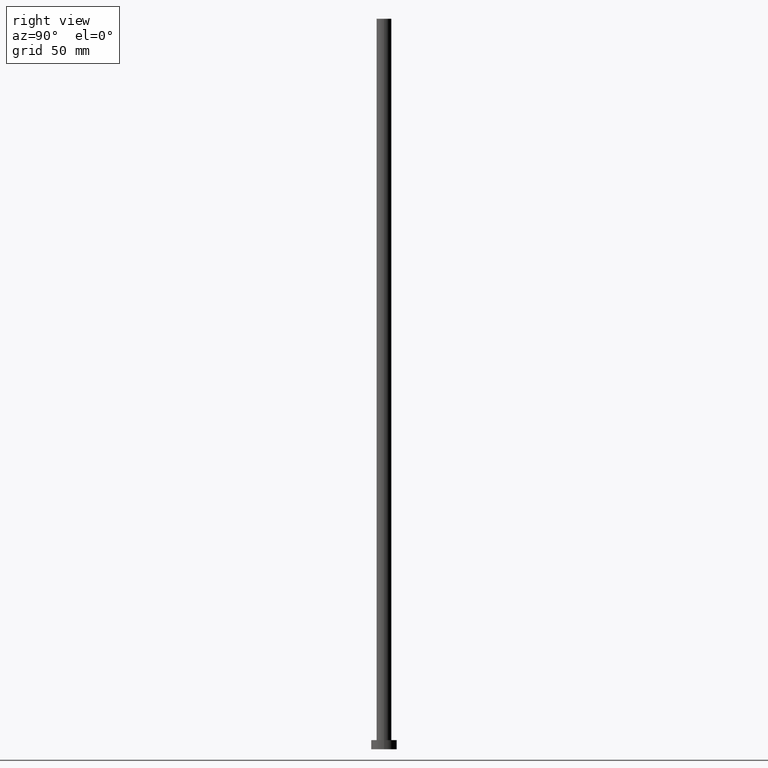
[diagram: clean part render]
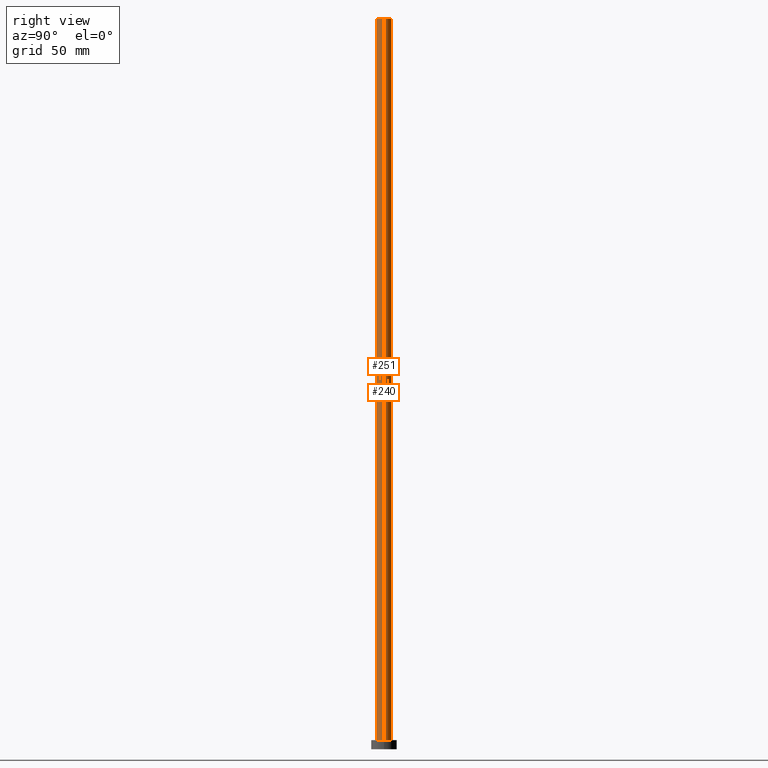
[diagram: same view with one multi-face feature highlighted, each face labeled with its STEP entity id]
A machine part, right view. The highlighted faces form ONE feature: a constant-radius fillet chain: 2 tangent blend faces with common blend radius 4.1 mm. The faces share edges in the B-rep.
Their STEP definitions:
[1] entity #251 (Cylinder):
#19 = VERTEX_POINT ( 'NONE', #211 ) ;
#23 = AXIS2_PLACEMENT_3D ( 'NONE', #35, #120, #82 ) ;
#29 = CIRCLE ( 'NONE', #67, 4.099999999999999645 ) ;
#35 = CARTESIAN_POINT ( 'NONE',  ( 0.000000000000000000, 0.000000000000000000, 400.0000000000000000 ) ) ;
#60 = FACE_OUTER_BOUND ( 'NONE', #204, .T. ) ;
#66 = EDGE_CURVE ( 'NONE', #225, #19, #131, .T. ) ;
#67 = AXIS2_PLACEMENT_3D ( 'NONE', #215, #125, #213 ) ;
#82 = DIRECTION ( 'NONE',  ( 1.000000000000000000, 0.000000000000000000, 0.000000000000000000 ) ) ;
#84 = CARTESIAN_POINT ( 'NONE',  ( 4.099999999999999645, 5.021051876504146399E-16, 400.0000000000000000 ) ) ;
#85 = DIRECTION ( 'NONE',  ( -0.000000000000000000, -0.000000000000000000, -1.000000000000000000 ) ) ;
#87 = VECTOR ( 'NONE', #169, 1000.000000000000000 ) ;
#89 = VERTEX_POINT ( 'NONE', #102 ) ;
#100 = DIRECTION ( 'NONE',  ( -0.000000000000000000, -0.000000000000000000, -1.000000000000000000 ) ) ;
#102 = CARTESIAN_POINT ( 'NONE',  ( -4.099999999999999645, 0.000000000000000000, 5.000000000000000000 ) ) ;
#116 = ORIENTED_EDGE ( 'NONE', *, *, #244, .F. ) ;
#119 = CYLINDRICAL_SURFACE ( 'NONE', #174, 4.099999999999999645 ) ;
#120 = DIRECTION ( 'NONE',  ( 0.000000000000000000, 0.000000000000000000, 1.000000000000000000 ) ) ;
#121 = LINE ( 'NONE', #217, #160 ) ;
#125 = DIRECTION ( 'NONE',  ( 0.000000000000000000, 0.000000000000000000, 1.000000000000000000 ) ) ;
#130 = ORIENTED_EDGE ( 'NONE', *, *, #66, .F. ) ;
#131 = LINE ( 'NONE', #208, #87 ) ;
#132 = ORIENTED_EDGE ( 'NONE', *, *, #171, .T. ) ;
#160 = VECTOR ( 'NONE', #85, 1000.000000000000000 ) ;
#169 = DIRECTION ( 'NONE',  ( -0.000000000000000000, -0.000000000000000000, -1.000000000000000000 ) ) ;
#171 = EDGE_CURVE ( 'NONE', #89, #19, #29, .T. ) ;
#173 = ORIENTED_EDGE ( 'NONE', *, *, #218, .T. ) ;
#174 = AXIS2_PLACEMENT_3D ( 'NONE', #196, #100, #194 ) ;
#193 = VERTEX_POINT ( 'NONE', #230 ) ;
#194 = DIRECTION ( 'NONE',  ( -1.000000000000000000, 0.000000000000000000, 0.000000000000000000 ) ) ;
#196 = CARTESIAN_POINT ( 'NONE',  ( 0.000000000000000000, 0.000000000000000000, 400.0000000000000000 ) ) ;
#204 = EDGE_LOOP ( 'NONE', ( #130, #116, #173, #132 ) ) ;
#208 = CARTESIAN_POINT ( 'NONE',  ( 4.099999999999999645, 5.021051876504146399E-16, 400.0000000000000000 ) ) ;
#211 = CARTESIAN_POINT ( 'NONE',  ( 4.099999999999999645, 5.021051876504146399E-16, 5.000000000000000000 ) ) ;
#213 = DIRECTION ( 'NONE',  ( 1.000000000000000000, 0.000000000000000000, 0.000000000000000000 ) ) ;
#214 = CIRCLE ( 'NONE', #23, 4.099999999999999645 ) ;
#215 = CARTESIAN_POINT ( 'NONE',  ( 0.000000000000000000, 0.000000000000000000, 5.000000000000000000 ) ) ;
#217 = CARTESIAN_POINT ( 'NONE',  ( -4.099999999999999645, 0.000000000000000000, 400.0000000000000000 ) ) ;
#218 = EDGE_CURVE ( 'NONE', #193, #89, #121, .T. ) ;
#225 = VERTEX_POINT ( 'NONE', #84 ) ;
#230 = CARTESIAN_POINT ( 'NONE',  ( -4.099999999999999645, 0.000000000000000000, 400.0000000000000000 ) ) ;
#244 = EDGE_CURVE ( 'NONE', #193, #225, #214, .T. ) ;
#251 = ADVANCED_FACE ( 'NONE', ( #60 ), #119, .T. ) ;
[2] entity #240 (Cylinder):
#2 = CIRCLE ( 'NONE', #50, 4.099999999999999645 ) ;
#13 = CARTESIAN_POINT ( 'NONE',  ( 0.000000000000000000, 0.000000000000000000, 400.0000000000000000 ) ) ;
#14 = DIRECTION ( 'NONE',  ( 0.000000000000000000, 0.000000000000000000, 1.000000000000000000 ) ) ;
#19 = VERTEX_POINT ( 'NONE', #211 ) ;
#50 = AXIS2_PLACEMENT_3D ( 'NONE', #13, #156, #136 ) ;
#52 = ORIENTED_EDGE ( 'NONE', *, *, #114, .T. ) ;
#66 = EDGE_CURVE ( 'NONE', #225, #19, #131, .T. ) ;
#84 = CARTESIAN_POINT ( 'NONE',  ( 4.099999999999999645, 5.021051876504146399E-16, 400.0000000000000000 ) ) ;
#85 = DIRECTION ( 'NONE',  ( -0.000000000000000000, -0.000000000000000000, -1.000000000000000000 ) ) ;
#87 = VECTOR ( 'NONE', #169, 1000.000000000000000 ) ;
#89 = VERTEX_POINT ( 'NONE', #102 ) ;
#101 = DIRECTION ( 'NONE',  ( -0.000000000000000000, -0.000000000000000000, -1.000000000000000000 ) ) ;
#102 = CARTESIAN_POINT ( 'NONE',  ( -4.099999999999999645, 0.000000000000000000, 5.000000000000000000 ) ) ;
#110 = ORIENTED_EDGE ( 'NONE', *, *, #233, .F. ) ;
#114 = EDGE_CURVE ( 'NONE', #19, #89, #137, .T. ) ;
#121 = LINE ( 'NONE', #217, #160 ) ;
#131 = LINE ( 'NONE', #208, #87 ) ;
#136 = DIRECTION ( 'NONE',  ( 1.000000000000000000, 0.000000000000000000, 0.000000000000000000 ) ) ;
#137 = CIRCLE ( 'NONE', #249, 4.099999999999999645 ) ;
#138 = CARTESIAN_POINT ( 'NONE',  ( 0.000000000000000000, 0.000000000000000000, 400.0000000000000000 ) ) ;
#150 = EDGE_LOOP ( 'NONE', ( #110, #242, #52, #223 ) ) ;
#156 = DIRECTION ( 'NONE',  ( 0.000000000000000000, 0.000000000000000000, 1.000000000000000000 ) ) ;
#160 = VECTOR ( 'NONE', #85, 1000.000000000000000 ) ;
#169 = DIRECTION ( 'NONE',  ( -0.000000000000000000, -0.000000000000000000, -1.000000000000000000 ) ) ;
#176 = DIRECTION ( 'NONE',  ( -1.000000000000000000, 0.000000000000000000, 0.000000000000000000 ) ) ;
#193 = VERTEX_POINT ( 'NONE', #230 ) ;
#197 = CARTESIAN_POINT ( 'NONE',  ( 0.000000000000000000, 0.000000000000000000, 5.000000000000000000 ) ) ;
#208 = CARTESIAN_POINT ( 'NONE',  ( 4.099999999999999645, 5.021051876504146399E-16, 400.0000000000000000 ) ) ;
#211 = CARTESIAN_POINT ( 'NONE',  ( 4.099999999999999645, 5.021051876504146399E-16, 5.000000000000000000 ) ) ;
#217 = CARTESIAN_POINT ( 'NONE',  ( -4.099999999999999645, 0.000000000000000000, 400.0000000000000000 ) ) ;
#218 = EDGE_CURVE ( 'NONE', #193, #89, #121, .T. ) ;
#223 = ORIENTED_EDGE ( 'NONE', *, *, #218, .F. ) ;
#225 = VERTEX_POINT ( 'NONE', #84 ) ;
#230 = CARTESIAN_POINT ( 'NONE',  ( -4.099999999999999645, 0.000000000000000000, 400.0000000000000000 ) ) ;
#231 = CYLINDRICAL_SURFACE ( 'NONE', #243, 4.099999999999999645 ) ;
#232 = FACE_OUTER_BOUND ( 'NONE', #150, .T. ) ;
#233 = EDGE_CURVE ( 'NONE', #225, #193, #2, .T. ) ;
#240 = ADVANCED_FACE ( 'NONE', ( #232 ), #231, .T. ) ;
#242 = ORIENTED_EDGE ( 'NONE', *, *, #66, .T. ) ;
#243 = AXIS2_PLACEMENT_3D ( 'NONE', #138, #101, #176 ) ;
#249 = AXIS2_PLACEMENT_3D ( 'NONE', #197, #14, #250 ) ;
#250 = DIRECTION ( 'NONE',  ( 1.000000000000000000, 0.000000000000000000, 0.000000000000000000 ) ) ;